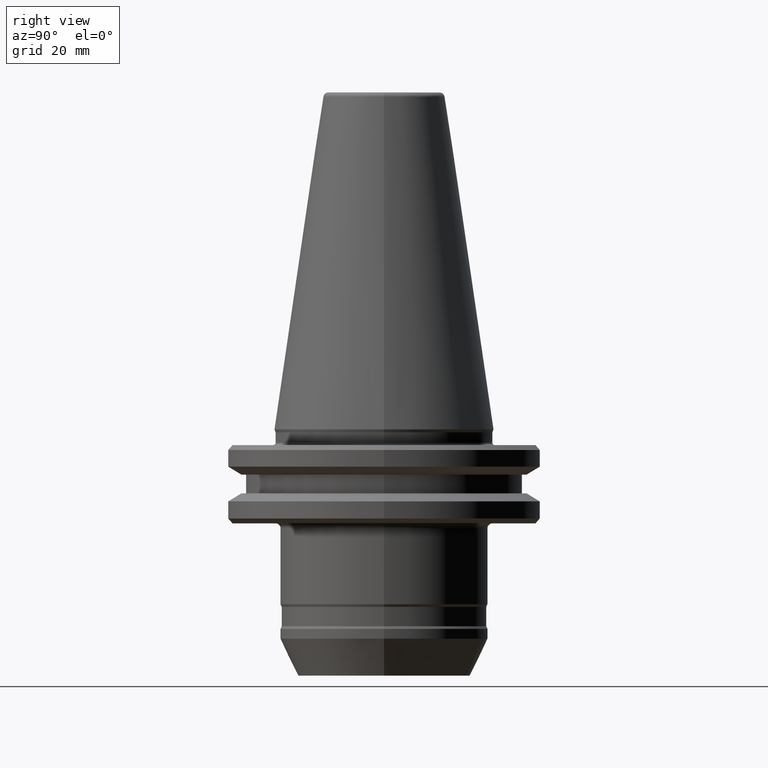
[diagram: clean part render]
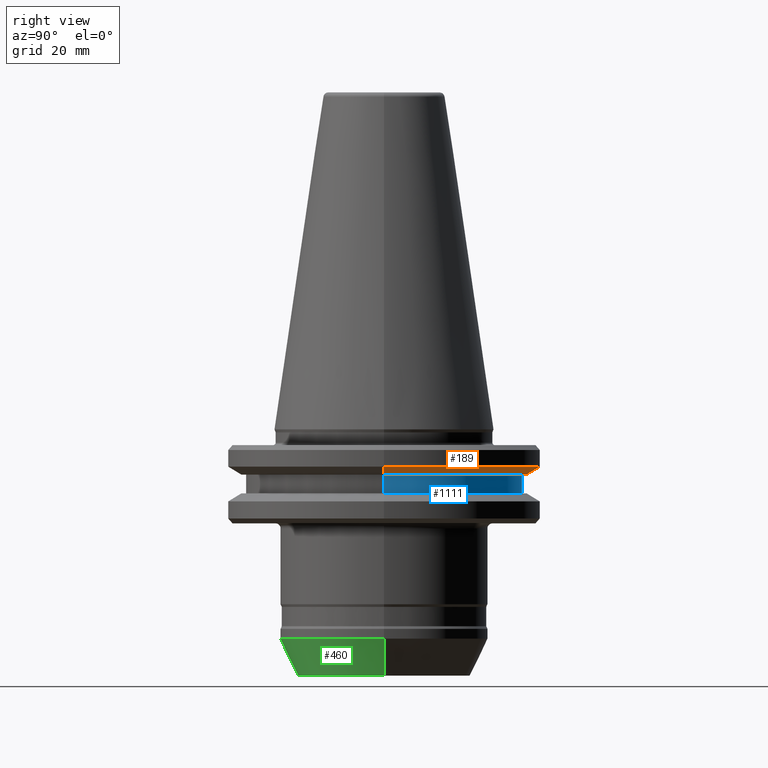
[diagram: same view with three faces highlighted in distinct colors, each labeled with its STEP entity id]
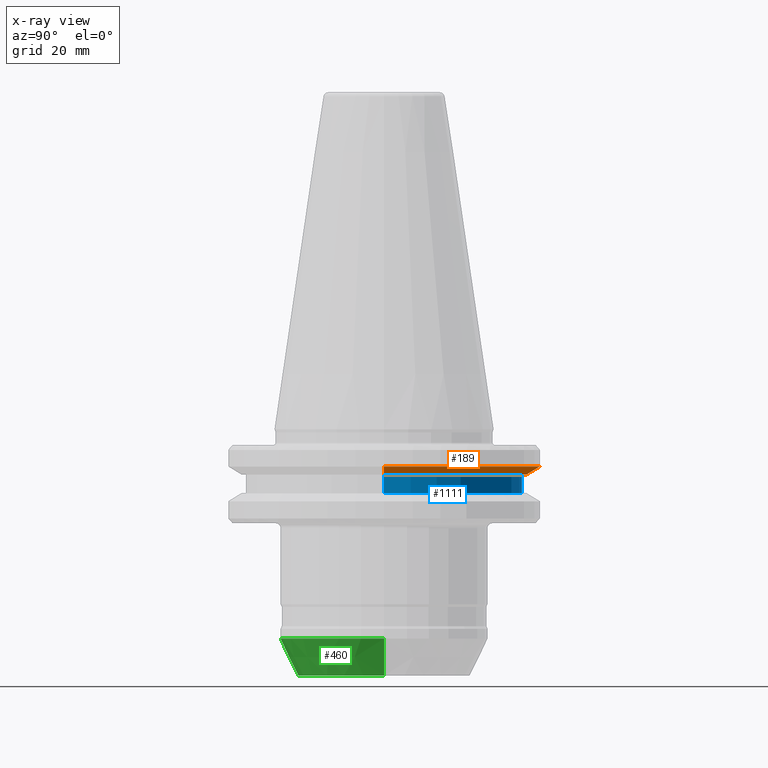
[diagram: x-ray of the same camera — body ghosted, the three highlighted faces saturated]
A machine part, right view with three faces highlighted in distinct colors.
The next image is the same camera in x-ray (body ghosted, the three faces saturated) — at least one of them is partly hidden behind the body in this view.
Their STEP definitions:

[orange] entity #189 — the highlighted conical surface has half-angle 60 deg.
#13 = AXIS2_PLACEMENT_3D ( 'NONE', #810, #268, #899 ) ;
#55 = CARTESIAN_POINT ( 'NONE',  ( 28.94089653438203400, 0.0000000000000000000, -9.199999999999874900 ) ) ;
#77 = CARTESIAN_POINT ( 'NONE',  ( 0.0000000000000000000, 0.0000000000000000000, -9.199999999999874900 ) ) ;
#150 = VECTOR ( 'NONE', #430, 1000.000000000000000 ) ;
#170 = DIRECTION ( 'NONE',  ( 1.000000000000000000, 0.0000000000000000000, 0.0000000000000000000 ) ) ;
#189 = ADVANCED_FACE ( 'NONE', ( #499 ), #676, .T. ) ;
#200 = ORIENTED_EDGE ( 'NONE', *, *, #292, .F. ) ;
#217 = AXIS2_PLACEMENT_3D ( 'NONE', #438, #876, #1157 ) ;
#220 = CARTESIAN_POINT ( 'NONE',  ( -28.94089653438203400, 3.544237630528568600E-015, -9.199999999999874900 ) ) ;
#235 = LINE ( 'NONE', #220, #813 ) ;
#266 = VERTEX_POINT ( 'NONE', #55 ) ;
#268 = DIRECTION ( 'NONE',  ( -0.0000000000000000000, -0.0000000000000000000, 1.000000000000000000 ) ) ;
#270 = AXIS2_PLACEMENT_3D ( 'NONE', #77, #696, #170 ) ;
#292 = EDGE_CURVE ( 'NONE', #266, #1009, #864, .T. ) ;
#295 = ORIENTED_EDGE ( 'NONE', *, *, #755, .T. ) ;
#308 = VERTEX_POINT ( 'NONE', #545 ) ;
#355 = CIRCLE ( 'NONE', #13, 31.74999999999994300 ) ;
#359 = ORIENTED_EDGE ( 'NONE', *, *, #1075, .F. ) ;
#430 = DIRECTION ( 'NONE',  ( 0.8660254037844468100, 0.0000000000000000000, 0.4999999999999858400 ) ) ;
#438 = CARTESIAN_POINT ( 'NONE',  ( 0.0000000000000000000, 0.0000000000000000000, -9.199999999999874900 ) ) ;
#449 = CARTESIAN_POINT ( 'NONE',  ( 28.94089653438203400, 0.0000000000000000000, -9.199999999999874900 ) ) ;
#499 = FACE_OUTER_BOUND ( 'NONE', #729, .T. ) ;
#506 = EDGE_CURVE ( 'NONE', #615, #308, #235, .T. ) ;
#545 = CARTESIAN_POINT ( 'NONE',  ( -31.74999999999994300, 3.888253587292840200E-015, -7.578163357943923400 ) ) ;
#615 = VERTEX_POINT ( 'NONE', #861 ) ;
#676 = CONICAL_SURFACE ( 'NONE', #217, 28.94089653438203400, 1.047197551196614100 ) ;
#696 = DIRECTION ( 'NONE',  ( -0.0000000000000000000, -0.0000000000000000000, 1.000000000000000000 ) ) ;
#729 = EDGE_LOOP ( 'NONE', ( #295, #1015, #359, #200 ) ) ;
#755 = EDGE_CURVE ( 'NONE', #266, #615, #1066, .T. ) ;
#810 = CARTESIAN_POINT ( 'NONE',  ( 0.0000000000000000000, 0.0000000000000000000, -7.578163357943923400 ) ) ;
#813 = VECTOR ( 'NONE', #1044, 1000.000000000000000 ) ;
#861 = CARTESIAN_POINT ( 'NONE',  ( -28.94089653438203400, 3.716245608910704200E-015, -9.199999999999874900 ) ) ;
#864 = LINE ( 'NONE', #449, #150 ) ;
#876 = DIRECTION ( 'NONE',  ( -0.0000000000000000000, -0.0000000000000000000, 1.000000000000000000 ) ) ;
#899 = DIRECTION ( 'NONE',  ( 1.000000000000000000, 0.0000000000000000000, 0.0000000000000000000 ) ) ;
#1009 = VERTEX_POINT ( 'NONE', #1182 ) ;
#1015 = ORIENTED_EDGE ( 'NONE', *, *, #506, .T. ) ;
#1044 = DIRECTION ( 'NONE',  ( -0.8660254037844468100, 1.060575238724916900E-016, 0.4999999999999858400 ) ) ;
#1066 = CIRCLE ( 'NONE', #270, 28.94089653438203400 ) ;
#1075 = EDGE_CURVE ( 'NONE', #1009, #308, #355, .T. ) ;
#1157 = DIRECTION ( 'NONE',  ( 1.000000000000000000, 0.0000000000000000000, 0.0000000000000000000 ) ) ;
#1182 = CARTESIAN_POINT ( 'NONE',  ( 31.74999999999994300, 0.0000000000000000000, -7.578163357943923400 ) ) ;

[blue] entity #1111 — the highlighted cylindrical surface (partial cylindrical patch) has radius 28 mm, axis along (-0, -0, 1).
#78 = EDGE_CURVE ( 'NONE', #370, #650, #799, .T. ) ;
#83 = VECTOR ( 'NONE', #1114, 1000.000000000000000 ) ;
#97 = EDGE_CURVE ( 'NONE', #1092, #650, #1023, .T. ) ;
#125 = CARTESIAN_POINT ( 'NONE',  ( 28.00000000000024900, 0.0000000000000000000, -9.199999999999874900 ) ) ;
#185 = DIRECTION ( 'NONE',  ( 1.000000000000000000, 0.0000000000000000000, 0.0000000000000000000 ) ) ;
#190 = ORIENTED_EDGE ( 'NONE', *, *, #349, .T. ) ;
#241 = CARTESIAN_POINT ( 'NONE',  ( -28.00000000000024900, 3.429011037612619300E-015, -9.199999999999874900 ) ) ;
#272 = DIRECTION ( 'NONE',  ( -0.0000000000000000000, -0.0000000000000000000, 1.000000000000000000 ) ) ;
#307 = CARTESIAN_POINT ( 'NONE',  ( 0.0000000000000000000, 0.0000000000000000000, -13.00000000000031600 ) ) ;
#349 = EDGE_CURVE ( 'NONE', #637, #1092, #560, .T. ) ;
#370 = VERTEX_POINT ( 'NONE', #125 ) ;
#401 = DIRECTION ( 'NONE',  ( 1.000000000000000000, 0.0000000000000000000, 0.0000000000000000000 ) ) ;
#412 = ORIENTED_EDGE ( 'NONE', *, *, #605, .F. ) ;
#467 = ORIENTED_EDGE ( 'NONE', *, *, #97, .T. ) ;
#495 = CARTESIAN_POINT ( 'NONE',  ( 28.00000000000024900, 0.0000000000000000000, 88.28259116811203500 ) ) ;
#498 = LINE ( 'NONE', #495, #741 ) ;
#539 = CARTESIAN_POINT ( 'NONE',  ( 0.0000000000000000000, 0.0000000000000000000, -9.199999999999874900 ) ) ;
#542 = AXIS2_PLACEMENT_3D ( 'NONE', #1000, #272, #185 ) ;
#560 = CIRCLE ( 'NONE', #945, 28.00000000000024900 ) ;
#561 = DIRECTION ( 'NONE',  ( -0.0000000000000000000, -0.0000000000000000000, 1.000000000000000000 ) ) ;
#605 = EDGE_CURVE ( 'NONE', #637, #370, #498, .T. ) ;
#619 = CARTESIAN_POINT ( 'NONE',  ( -28.00000000000024900, 3.429011037612619300E-015, -13.00000000000031600 ) ) ;
#637 = VERTEX_POINT ( 'NONE', #966 ) ;
#650 = VERTEX_POINT ( 'NONE', #241 ) ;
#741 = VECTOR ( 'NONE', #1151, 1000.000000000000000 ) ;
#743 = FACE_OUTER_BOUND ( 'NONE', #863, .T. ) ;
#799 = CIRCLE ( 'NONE', #970, 28.00000000000024900 ) ;
#828 = DIRECTION ( 'NONE',  ( 1.000000000000000000, 0.0000000000000000000, 0.0000000000000000000 ) ) ;
#851 = DIRECTION ( 'NONE',  ( -0.0000000000000000000, -0.0000000000000000000, 1.000000000000000000 ) ) ;
#863 = EDGE_LOOP ( 'NONE', ( #190, #467, #1122, #412 ) ) ;
#945 = AXIS2_PLACEMENT_3D ( 'NONE', #307, #561, #401 ) ;
#965 = CYLINDRICAL_SURFACE ( 'NONE', #542, 28.00000000000024900 ) ;
#966 = CARTESIAN_POINT ( 'NONE',  ( 28.00000000000024900, 0.0000000000000000000, -13.00000000000031600 ) ) ;
#970 = AXIS2_PLACEMENT_3D ( 'NONE', #539, #851, #828 ) ;
#1000 = CARTESIAN_POINT ( 'NONE',  ( 0.0000000000000000000, 0.0000000000000000000, 88.28259116811203500 ) ) ;
#1023 = LINE ( 'NONE', #1098, #83 ) ;
#1092 = VERTEX_POINT ( 'NONE', #619 ) ;
#1098 = CARTESIAN_POINT ( 'NONE',  ( -28.00000000000024900, 3.429011037612619300E-015, 88.28259116811203500 ) ) ;
#1111 = ADVANCED_FACE ( 'NONE', ( #743 ), #965, .T. ) ;
#1114 = DIRECTION ( 'NONE',  ( -0.0000000000000000000, -0.0000000000000000000, 1.000000000000000000 ) ) ;
#1122 = ORIENTED_EDGE ( 'NONE', *, *, #78, .F. ) ;
#1151 = DIRECTION ( 'NONE',  ( -0.0000000000000000000, -0.0000000000000000000, 1.000000000000000000 ) ) ;

[green] entity #460 — the highlighted conical surface has half-angle 25 deg.
#19 = FACE_OUTER_BOUND ( 'NONE', #46, .T. ) ;
#46 = EDGE_LOOP ( 'NONE', ( #607, #255, #640, #978 ) ) ;
#48 = EDGE_CURVE ( 'NONE', #1191, #979, #116, .T. ) ;
#116 = LINE ( 'NONE', #203, #1052 ) ;
#127 = DIRECTION ( 'NONE',  ( -0.0000000000000000000, -0.0000000000000000000, 1.000000000000000000 ) ) ;
#145 = VERTEX_POINT ( 'NONE', #906 ) ;
#161 = CONICAL_SURFACE ( 'NONE', #1051, 17.50000000000075300, 0.4363323129987310400 ) ;
#188 = VECTOR ( 'NONE', #882, 1000.000000000000000 ) ;
#203 = CARTESIAN_POINT ( 'NONE',  ( -17.50000000000075300, 2.143131898507960500E-015, -49.99999999999708700 ) ) ;
#224 = CIRCLE ( 'NONE', #1164, 21.00000000000178300 ) ;
#255 = ORIENTED_EDGE ( 'NONE', *, *, #551, .T. ) ;
#291 = EDGE_CURVE ( 'NONE', #145, #969, #1106, .T. ) ;
#406 = DIRECTION ( 'NONE',  ( -0.0000000000000000000, -0.0000000000000000000, 1.000000000000000000 ) ) ;
#411 = AXIS2_PLACEMENT_3D ( 'NONE', #955, #406, #1053 ) ;
#460 = ADVANCED_FACE ( 'NONE', ( #19 ), #161, .T. ) ;
#487 = CARTESIAN_POINT ( 'NONE',  ( -21.00000000000178300, 2.571758278209660200E-015, -42.49422577821433600 ) ) ;
#496 = CARTESIAN_POINT ( 'NONE',  ( 17.50000000000075300, 0.0000000000000000000, -49.99999999999708700 ) ) ;
#507 = CARTESIAN_POINT ( 'NONE',  ( -17.50000000000075300, 2.357445088358810200E-015, -49.99999999999708700 ) ) ;
#551 = EDGE_CURVE ( 'NONE', #1191, #145, #1025, .T. ) ;
#607 = ORIENTED_EDGE ( 'NONE', *, *, #48, .F. ) ;
#640 = ORIENTED_EDGE ( 'NONE', *, *, #291, .T. ) ;
#647 = CARTESIAN_POINT ( 'NONE',  ( 0.0000000000000000000, 0.0000000000000000000, -42.49422577821433600 ) ) ;
#665 = CARTESIAN_POINT ( 'NONE',  ( 21.00000000000178300, 0.0000000000000000000, -42.49422577821433600 ) ) ;
#682 = DIRECTION ( 'NONE',  ( -0.0000000000000000000, -0.0000000000000000000, 1.000000000000000000 ) ) ;
#746 = DIRECTION ( 'NONE',  ( 1.000000000000000000, 0.0000000000000000000, 0.0000000000000000000 ) ) ;
#784 = DIRECTION ( 'NONE',  ( 1.000000000000000000, 0.0000000000000000000, 0.0000000000000000000 ) ) ;
#859 = EDGE_CURVE ( 'NONE', #979, #969, #224, .T. ) ;
#882 = DIRECTION ( 'NONE',  ( 0.4226182617408341700, 0.0000000000000000000, 0.9063077870365871000 ) ) ;
#906 = CARTESIAN_POINT ( 'NONE',  ( 17.50000000000075300, 0.0000000000000000000, -49.99999999999708700 ) ) ;
#915 = CARTESIAN_POINT ( 'NONE',  ( 0.0000000000000000000, 0.0000000000000000000, -49.99999999999708700 ) ) ;
#955 = CARTESIAN_POINT ( 'NONE',  ( 0.0000000000000000000, 0.0000000000000000000, -49.99999999999708700 ) ) ;
#969 = VERTEX_POINT ( 'NONE', #665 ) ;
#978 = ORIENTED_EDGE ( 'NONE', *, *, #859, .F. ) ;
#979 = VERTEX_POINT ( 'NONE', #487 ) ;
#1025 = CIRCLE ( 'NONE', #411, 17.50000000000075300 ) ;
#1051 = AXIS2_PLACEMENT_3D ( 'NONE', #915, #682, #784 ) ;
#1052 = VECTOR ( 'NONE', #1128, 1000.000000000000000 ) ;
#1053 = DIRECTION ( 'NONE',  ( 1.000000000000000000, 0.0000000000000000000, 0.0000000000000000000 ) ) ;
#1106 = LINE ( 'NONE', #496, #188 ) ;
#1128 = DIRECTION ( 'NONE',  ( -0.4226182617408341700, 5.175581015021308600E-017, 0.9063077870365871000 ) ) ;
#1164 = AXIS2_PLACEMENT_3D ( 'NONE', #647, #127, #746 ) ;
#1191 = VERTEX_POINT ( 'NONE', #507 ) ;